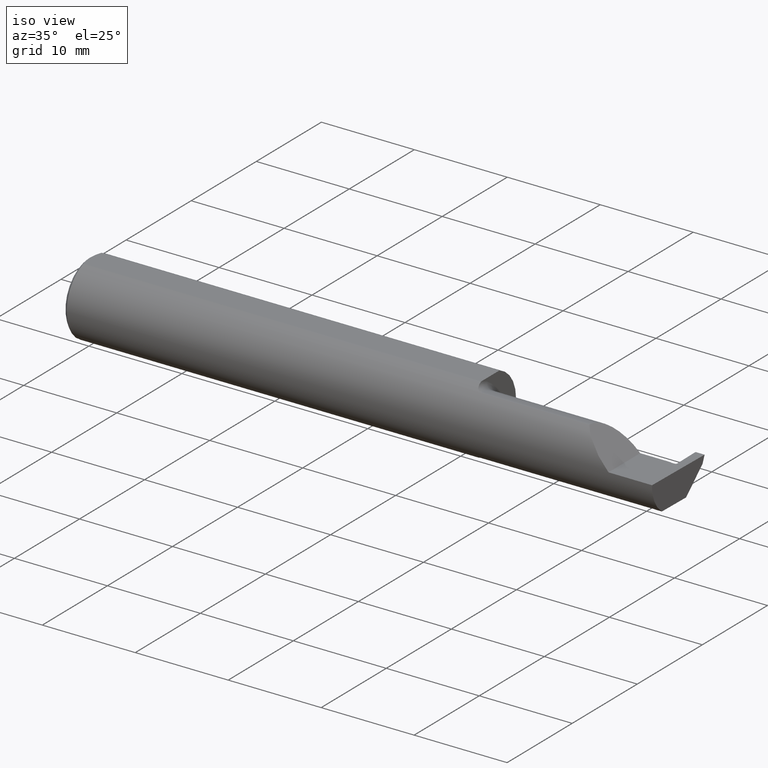
[diagram: clean part render]
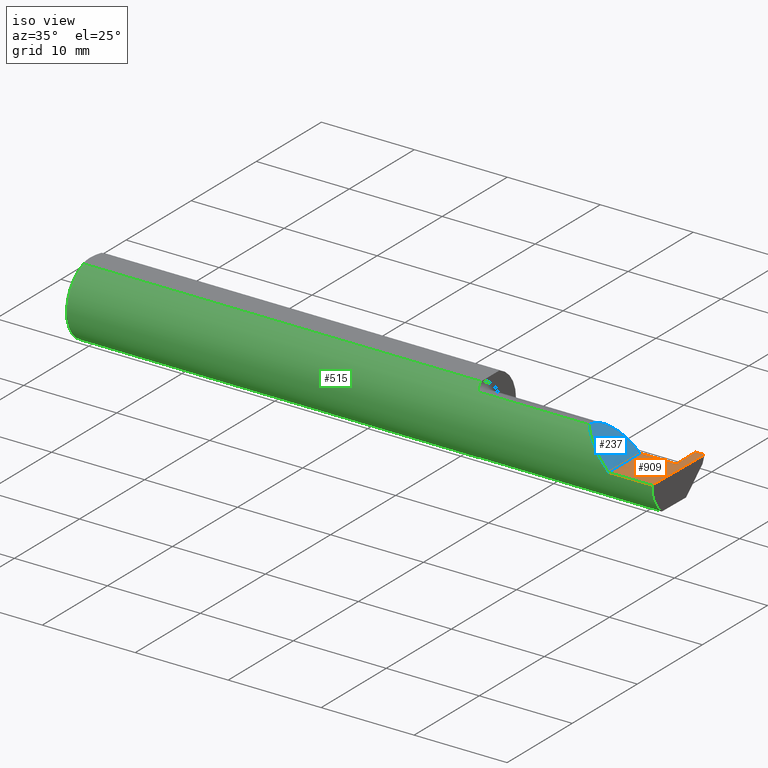
[diagram: same view with three faces highlighted in distinct colors, each labeled with its STEP entity id]
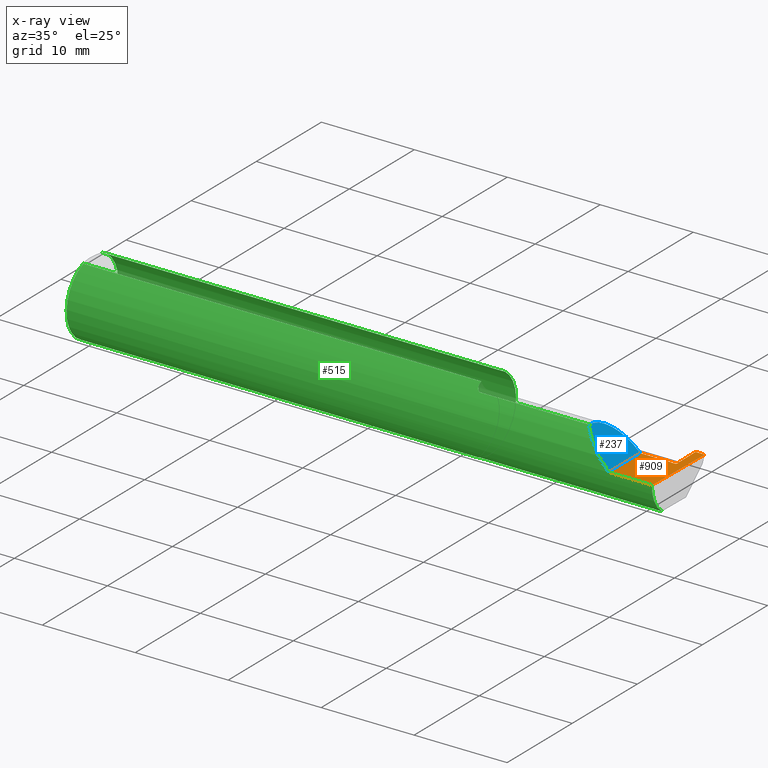
[diagram: x-ray of the same camera — body ghosted, the three highlighted faces saturated]
A machine part, iso view with three faces highlighted in distinct colors.
The next image is the same camera in x-ray (body ghosted, the three faces saturated) — at least one of them is partly hidden behind the body in this view.
Their STEP definitions:

[orange] entity #909 — the highlighted planar face has unit normal (-0, 0, -1).
#22 = CARTESIAN_POINT ( 'NONE',  ( 2.439500000000000668, 0.03590000000000006380, 7.121324356843854204E-18 ) ) ;
#36 = CARTESIAN_POINT ( 'NONE',  ( 2.463470289915465905, 0.04102216684465942453, -1.258616854567686712E-10 ) ) ;
#38 = LINE ( 'NONE', #343, #424 ) ;
#62 = CARTESIAN_POINT ( 'NONE',  ( 2.310000000000000053, 0.03589999999999998748, 2.326828918379970872E-17 ) ) ;
#98 = B_SPLINE_CURVE_WITH_KNOTS ( 'NONE', 1,
 ( #1085, #540 ),
 .UNSPECIFIED., .F., .F.,
 ( 2, 2 ),
 ( 0.000000000000000000, 7.184204902300483377E-05 ),
 .UNSPECIFIED. ) ;
#111 = DIRECTION ( 'NONE',  ( 1.000000000000000000, 0.000000000000000000, 0.000000000000000000 ) ) ;
#116 = EDGE_CURVE ( 'NONE', #488, #147, #628, .T. ) ;
#126 = DIRECTION ( 'NONE',  ( -1.000000000000000000, 0.000000000000000000, 1.224646799147353700E-16 ) ) ;
#145 = CARTESIAN_POINT ( 'NONE',  ( 3.749399456654646757E-32, -0.1560999999999999888, 3.061616997868384127E-16 ) ) ;
#147 = VERTEX_POINT ( 'NONE', #745 ) ;
#197 = CARTESIAN_POINT ( 'NONE',  ( 2.500000000000000000, 0.1539000000000000090, 0.000000000000000000 ) ) ;
#234 = VERTEX_POINT ( 'NONE', #22 ) ;
#243 = CARTESIAN_POINT ( 'NONE',  ( 2.500000000000000000, 0.1539000000000000090, 0.000000000000000000 ) ) ;
#257 = VERTEX_POINT ( 'NONE', #413 ) ;
#261 = CARTESIAN_POINT ( 'NONE',  ( 2.460628833460035914, 0.03389999999987892976, -1.207202258587004251E-10 ) ) ;
#270 = EDGE_CURVE ( 'NONE', #951, #234, #98, .T. ) ;
#273 = EDGE_CURVE ( 'NONE', #1084, #997, #38, .T. ) ;
#300 = B_SPLINE_CURVE_WITH_KNOTS ( 'NONE', 1,
 ( #852, #441 ),
 .UNSPECIFIED., .F., .F.,
 ( 2, 2 ),
 ( 0.000000000000000000, 0.0003802724434284823762 ),
 .UNSPECIFIED. ) ;
#303 = LINE ( 'NONE', #815, #1077 ) ;
#319 = EDGE_CURVE ( 'NONE', #147, #951, #300, .T. ) ;
#336 = VECTOR ( 'NONE', #111, 39.37007874015748143 ) ;
#343 = CARTESIAN_POINT ( 'NONE',  ( 2.310000000000000053, -0.2000000000000000111, 2.326828918379970872E-17 ) ) ;
#361 = VERTEX_POINT ( 'NONE', #197 ) ;
#373 = ORIENTED_EDGE ( 'NONE', *, *, #941, .F. ) ;
#392 = DIRECTION ( 'NONE',  ( 1.000000000000000000, -0.000000000000000000, -0.000000000000000000 ) ) ;
#398 = LINE ( 'NONE', #145, #581 ) ;
#401 = EDGE_CURVE ( 'NONE', #257, #488, #867, .T. ) ;
#413 = CARTESIAN_POINT ( 'NONE',  ( 2.461499999986525022, 0.1539000000000000090, -2.694222958124035986E-19 ) ) ;
#421 = CARTESIAN_POINT ( 'NONE',  ( 2.463542847896578625, 0.03686532263356468581, -1.231239365514285891E-10 ) ) ;
#424 = VECTOR ( 'NONE', #769, 39.37007874015748143 ) ;
#427 = CARTESIAN_POINT ( 'NONE',  ( 2.463470289915465905, 0.04102216684465942453, -1.258616854567686712E-10 ) ) ;
#440 = ORIENTED_EDGE ( 'NONE', *, *, #116, .T. ) ;
#441 = CARTESIAN_POINT ( 'NONE',  ( 2.441500000003368420, 0.03390000000033598776, -4.822709006013936333E-11 ) ) ;
#458 = AXIS2_PLACEMENT_3D ( 'NONE', #695, #1039, #126 ) ;
#460 = CARTESIAN_POINT ( 'NONE',  ( 2.463470289915465905, 0.04102216684465942453, -1.258616854567686712E-10 ) ) ;
#471 = ORIENTED_EDGE ( 'NONE', *, *, #401, .T. ) ;
#488 = VERTEX_POINT ( 'NONE', #460 ) ;
#494 = VERTEX_POINT ( 'NONE', #779 ) ;
#540 = CARTESIAN_POINT ( 'NONE',  ( 2.439500000000000668, 0.03590000000000006380, 7.121324356843854204E-18 ) ) ;
#542 = CARTESIAN_POINT ( 'NONE',  ( 2.461499999986525022, 0.1539000000000000090, -2.694222958124035986E-19 ) ) ;
#544 = PLANE ( 'NONE',  #458 ) ;
#571 = LINE ( 'NONE', #243, #1027 ) ;
#581 = VECTOR ( 'NONE', #721, 39.37007874015748143 ) ;
#610 = FACE_OUTER_BOUND ( 'NONE', #813, .T. ) ;
#614 = CARTESIAN_POINT ( 'NONE',  ( 1.699999999999999956, 0.03590000000000001523, 9.797174393178832313E-17 ) ) ;
#628 =( BOUNDED_CURVE ( )  B_SPLINE_CURVE ( 3, ( #427, #421, #261, #1079 ),
 .UNSPECIFIED., .F., .F. ) 
 B_SPLINE_CURVE_WITH_KNOTS ( ( 4, 4 ),
 ( 8.673617379884047028E-19, 0.0002808519285676875157 ),
 .UNSPECIFIED. ) 
 CURVE ( )  GEOMETRIC_REPRESENTATION_ITEM ( )  RATIONAL_B_SPLINE_CURVE ( ( 1.000000000000000000, 0.8006061761999021531, 0.8006061761999021531, 1.000000000000000000 ) ) 
 REPRESENTATION_ITEM ( '' )  );
#695 = CARTESIAN_POINT ( 'NONE',  ( 2.500000000000000000, -0.2000000000000000111, 0.000000000000000000 ) ) ;
#715 = LINE ( 'NONE', #614, #336 ) ;
#721 = DIRECTION ( 'NONE',  ( -1.000000000000000000, -0.000000000000000000, -0.000000000000000000 ) ) ;
#731 = DIRECTION ( 'NONE',  ( -0.01745240643727716603, -0.9998476951563912696, 0.000000000000000000 ) ) ;
#745 = CARTESIAN_POINT ( 'NONE',  ( 2.456471356043859799, 0.03389999999999732117, -4.694856722559639658E-11 ) ) ;
#758 = ORIENTED_EDGE ( 'NONE', *, *, #319, .T. ) ;
#769 = DIRECTION ( 'NONE',  ( -0.000000000000000000, 1.000000000000000000, -0.000000000000000000 ) ) ;
#779 = CARTESIAN_POINT ( 'NONE',  ( 2.494588929872255001, -0.1561000000000000443, 0.000000000000000000 ) ) ;
#813 = EDGE_LOOP ( 'NONE', ( #919, #924, #1013, #471, #440, #758, #980, #373, #858 ) ) ;
#815 = CARTESIAN_POINT ( 'NONE',  ( 2.399999999999999911, 0.1539000000000000090, -2.694222958124035986E-19 ) ) ;
#852 = CARTESIAN_POINT ( 'NONE',  ( 2.456471356043859799, 0.03389999999999732117, -4.694856722559639658E-11 ) ) ;
#858 = ORIENTED_EDGE ( 'NONE', *, *, #273, .F. ) ;
#867 = B_SPLINE_CURVE_WITH_KNOTS ( 'NONE', 1,
 ( #542, #36 ),
 .UNSPECIFIED., .F., .F.,
 ( 2, 2 ),
 ( 6.843756573219531102E-15, 0.002867533701434297599 ),
 .UNSPECIFIED. ) ;
#909 = ADVANCED_FACE ( 'NONE', ( #610 ), #544, .F. ) ;
#919 = ORIENTED_EDGE ( 'NONE', *, *, #1070, .F. ) ;
#924 = ORIENTED_EDGE ( 'NONE', *, *, #1087, .F. ) ;
#941 = EDGE_CURVE ( 'NONE', #997, #234, #715, .T. ) ;
#951 = VERTEX_POINT ( 'NONE', #972 ) ;
#972 = CARTESIAN_POINT ( 'NONE',  ( 2.441500000003368420, 0.03390000000033598776, -4.822709006013936333E-11 ) ) ;
#980 = ORIENTED_EDGE ( 'NONE', *, *, #270, .T. ) ;
#982 = CARTESIAN_POINT ( 'NONE',  ( 2.310000000000000053, -0.1560999999999999888, 2.326828918379970872E-17 ) ) ;
#997 = VERTEX_POINT ( 'NONE', #62 ) ;
#1013 = ORIENTED_EDGE ( 'NONE', *, *, #1017, .F. ) ;
#1017 = EDGE_CURVE ( 'NONE', #257, #361, #303, .T. ) ;
#1027 = VECTOR ( 'NONE', #731, 39.37007874015748143 ) ;
#1039 = DIRECTION ( 'NONE',  ( -1.224646799147353700E-16, 0.000000000000000000, -1.000000000000000000 ) ) ;
#1070 = EDGE_CURVE ( 'NONE', #494, #1084, #398, .T. ) ;
#1077 = VECTOR ( 'NONE', #392, 39.37007874015748143 ) ;
#1079 = CARTESIAN_POINT ( 'NONE',  ( 2.456471356043859799, 0.03389999999999732117, -4.694856722559639658E-11 ) ) ;
#1084 = VERTEX_POINT ( 'NONE', #982 ) ;
#1085 = CARTESIAN_POINT ( 'NONE',  ( 2.441500000003368420, 0.03390000000033598776, -4.822709006013936333E-11 ) ) ;
#1087 = EDGE_CURVE ( 'NONE', #361, #494, #571, .T. ) ;

[blue] entity #237 — the highlighted planar face has unit normal (-0.7071, 0, -0.7071).
#25 = CARTESIAN_POINT ( 'NONE',  ( 2.185000000000000941, -0.08909999999999998477, 0.1250000000000000000 ) ) ;
#38 = LINE ( 'NONE', #343, #424 ) ;
#43 = CARTESIAN_POINT ( 'NONE',  ( 2.185000000000000941, -0.09060321336276840054, 0.1250000000000000278 ) ) ;
#62 = CARTESIAN_POINT ( 'NONE',  ( 2.310000000000000053, 0.03589999999999998748, 2.326828918379970872E-17 ) ) ;
#92 = CARTESIAN_POINT ( 'NONE',  ( 2.185081329771848768, -0.09360841750841755737, 0.1249186702281519651 ) ) ;
#104 = ORIENTED_EDGE ( 'NONE', *, *, #934, .F. ) ;
#109 = VERTEX_POINT ( 'NONE', #1018 ) ;
#193 = AXIS2_PLACEMENT_3D ( 'NONE', #722, #1061, #560 ) ;
#202 = VERTEX_POINT ( 'NONE', #92 ) ;
#205 = CARTESIAN_POINT ( 'NONE',  ( 2.185000000000000941, -0.08909999999999998477, 0.1250000000000000000 ) ) ;
#219 = FACE_OUTER_BOUND ( 'NONE', #658, .T. ) ;
#237 = ADVANCED_FACE ( 'NONE', ( #219 ), #552, .F. ) ;
#256 =( BOUNDED_CURVE ( )  B_SPLINE_CURVE ( 3, ( #205, #962, #633, #885 ),
 .UNSPECIFIED., .F., .F. ) 
 B_SPLINE_CURVE_WITH_KNOTS ( ( 4, 4 ),
 ( 0.000000000000000000, 1.570796326794896558 ),
 .UNSPECIFIED. ) 
 CURVE ( )  GEOMETRIC_REPRESENTATION_ITEM ( )  RATIONAL_B_SPLINE_CURVE ( ( 1.000000000000000000, 0.8047378541243649375, 0.8047378541243649375, 1.000000000000000000 ) ) 
 REPRESENTATION_ITEM ( '' )  );
#273 = EDGE_CURVE ( 'NONE', #1084, #997, #38, .T. ) ;
#343 = CARTESIAN_POINT ( 'NONE',  ( 2.310000000000000053, -0.2000000000000000111, 2.326828918379970872E-17 ) ) ;
#350 = EDGE_CURVE ( 'NONE', #1084, #202, #930, .T. ) ;
#424 = VECTOR ( 'NONE', #769, 39.37007874015748143 ) ;
#533 = CARTESIAN_POINT ( 'NONE',  ( 2.310000000000000053, -0.1560999999999999888, 2.326828918379970872E-17 ) ) ;
#552 = PLANE ( 'NONE',  #193 ) ;
#560 = DIRECTION ( 'NONE',  ( -0.7071067811865459074, 0.000000000000000000, 0.7071067811865492381 ) ) ;
#630 = ORIENTED_EDGE ( 'NONE', *, *, #350, .F. ) ;
#632 = CARTESIAN_POINT ( 'NONE',  ( 2.259912409421232837, -0.1560999999999999888, 0.05008759057876772947 ) ) ;
#633 = CARTESIAN_POINT ( 'NONE',  ( 2.236776695296637474, 0.03590000000000000829, 0.07322330470336313457 ) ) ;
#658 = EDGE_LOOP ( 'NONE', ( #104, #630, #733, #840 ) ) ;
#669 =( BOUNDED_CURVE ( )  B_SPLINE_CURVE ( 3, ( #866, #797, #43, #25 ),
 .UNSPECIFIED., .F., .T. ) 
 B_SPLINE_CURVE_WITH_KNOTS ( ( 4, 4 ),
 ( 6.247110142813122380, 6.283185307179586232 ),
 .UNSPECIFIED. ) 
 CURVE ( )  GEOMETRIC_REPRESENTATION_ITEM ( )  RATIONAL_B_SPLINE_CURVE ( ( 1.000000000000000000, 0.9998915514833921492, 0.9998915514833921492, 1.000000000000000000 ) ) 
 REPRESENTATION_ITEM ( '' )  );
#722 = CARTESIAN_POINT ( 'NONE',  ( 2.310000000000000053, -0.2000000000000000111, 2.326828918379970872E-17 ) ) ;
#733 = ORIENTED_EDGE ( 'NONE', *, *, #273, .T. ) ;
#769 = DIRECTION ( 'NONE',  ( -0.000000000000000000, 1.000000000000000000, -0.000000000000000000 ) ) ;
#797 = CARTESIAN_POINT ( 'NONE',  ( 2.185027112864299959, -0.09210618219364782866, 0.1249728871357007748 ) ) ;
#840 = ORIENTED_EDGE ( 'NONE', *, *, #859, .F. ) ;
#859 = EDGE_CURVE ( 'NONE', #109, #997, #256, .T. ) ;
#864 = CARTESIAN_POINT ( 'NONE',  ( 2.185081329771848768, -0.09360841750841755737, 0.1249186702281519651 ) ) ;
#866 = CARTESIAN_POINT ( 'NONE',  ( 2.185081329771848768, -0.09360841750841755737, 0.1249186702281519651 ) ) ;
#885 = CARTESIAN_POINT ( 'NONE',  ( 2.310000000000000053, 0.03589999999999998748, 2.326828918379970872E-17 ) ) ;
#930 =( BOUNDED_CURVE ( )  B_SPLINE_CURVE ( 3, ( #533, #632, #1044, #864 ),
 .UNSPECIFIED., .F., .T. ) 
 B_SPLINE_CURVE_WITH_KNOTS ( ( 4, 4 ),
 ( 4.712388980384689674, 5.640097190903853530 ),
 .UNSPECIFIED. ) 
 CURVE ( )  GEOMETRIC_REPRESENTATION_ITEM ( )  RATIONAL_B_SPLINE_CURVE ( ( 1.000000000000000000, 0.9295565493311498395, 0.9295565493311498395, 1.000000000000000000 ) ) 
 REPRESENTATION_ITEM ( '' )  );
#934 = EDGE_CURVE ( 'NONE', #202, #109, #669, .T. ) ;
#962 = CARTESIAN_POINT ( 'NONE',  ( 2.185000000000000941, -0.01587669529663685714, 0.1250000000000000278 ) ) ;
#982 = CARTESIAN_POINT ( 'NONE',  ( 2.310000000000000053, -0.1560999999999999888, 2.326828918379970872E-17 ) ) ;
#997 = VERTEX_POINT ( 'NONE', #62 ) ;
#1018 = CARTESIAN_POINT ( 'NONE',  ( 2.185000000000000941, -0.08909999999999998477, 0.1250000000000000000 ) ) ;
#1044 = CARTESIAN_POINT ( 'NONE',  ( 2.215117332916550552, -0.1336908980339254205, 0.09488266708345004241 ) ) ;
#1061 = DIRECTION ( 'NONE',  ( -0.7071067811865492381, 0.000000000000000000, -0.7071067811865459074 ) ) ;
#1084 = VERTEX_POINT ( 'NONE', #982 ) ;

[green] entity #515 — the highlighted cylindrical surface (partial cylindrical patch) has radius 3.9649 mm, axis along (-1, -0, -0).
#7 = CARTESIAN_POINT ( 'NONE',  ( 1.712810002172222346, -0.08909999999984934138, 0.1281733201569306146 ) ) ;
#8 = VERTEX_POINT ( 'NONE', #836 ) ;
#9 = EDGE_CURVE ( 'NONE', #378, #8, #408, .T. ) ;
#17 =( BOUNDED_CURVE ( )  B_SPLINE_CURVE ( 3, ( #531, #887, #45, #294 ),
 .UNSPECIFIED., .F., .T. ) 
 B_SPLINE_CURVE_WITH_KNOTS ( ( 4, 4 ),
 ( 0.05521439950980804034, 0.9829226100289724100 ),
 .UNSPECIFIED. ) 
 CURVE ( )  GEOMETRIC_REPRESENTATION_ITEM ( )  RATIONAL_B_SPLINE_CURVE ( ( 1.000000000000000000, 0.9295565493311498395, 0.9295565493311498395, 1.000000000000000000 ) ) 
 REPRESENTATION_ITEM ( '' )  );
#18 = AXIS2_PLACEMENT_3D ( 'NONE', #224, #60, #472 ) ;
#21 = CARTESIAN_POINT ( 'NONE',  ( 1.699999999999999956, 0.000000000000000000, 0.000000000000000000 ) ) ;
#24 = DIRECTION ( 'NONE',  ( 0.000000000000000000, 0.000000000000000000, -1.000000000000000000 ) ) ;
#28 = ORIENTED_EDGE ( 'NONE', *, *, #589, .F. ) ;
#31 = CARTESIAN_POINT ( 'NONE',  ( 0.01499999999999999944, -0.05497272050753900657, 0.1460999999999999799 ) ) ;
#32 = DIRECTION ( 'NONE',  ( -1.000000000000000000, -0.000000000000000000, -0.000000000000000000 ) ) ;
#45 = CARTESIAN_POINT ( 'NONE',  ( 2.493277140361873201, -0.1561000000000000165, -0.05008759057876776416 ) ) ;
#46 = ORIENTED_EDGE ( 'NONE', *, *, #873, .F. ) ;
#54 = VECTOR ( 'NONE', #355, 39.37007874015748143 ) ;
#60 = DIRECTION ( 'NONE',  ( -1.000000000000000000, -0.000000000000000000, -0.000000000000000000 ) ) ;
#70 = CARTESIAN_POINT ( 'NONE',  ( 2.447675737396382001, -0.09578188742118470822, -0.1232601041107730250 ) ) ;
#73 = VERTEX_POINT ( 'NONE', #1089 ) ;
#78 = CARTESIAN_POINT ( 'NONE',  ( 1.716072683443917946, -0.09172126259464279119, 0.1263511429915041839 ) ) ;
#87 = CARTESIAN_POINT ( 'NONE',  ( 1.720364775055372553, -0.09360841750841757125, 0.1249186702281519512 ) ) ;
#92 = CARTESIAN_POINT ( 'NONE',  ( 2.185081329771848768, -0.09360841750841755737, 0.1249186702281519651 ) ) ;
#95 = CARTESIAN_POINT ( 'NONE',  ( 2.492408115719126460, -0.09360841750841747411, -0.1249186702281520206 ) ) ;
#97 = ORIENTED_EDGE ( 'NONE', *, *, #1019, .F. ) ;
#106 = DIRECTION ( 'NONE',  ( 0.000000000000000000, 0.000000000000000000, -1.000000000000000000 ) ) ;
#112 = CARTESIAN_POINT ( 'NONE',  ( 2.090749999999999886, -0.09360841750841747411, -0.1249186702281520206 ) ) ;
#117 = EDGE_CURVE ( 'NONE', #647, #378, #352, .T. ) ;
#120 = EDGE_CURVE ( 'NONE', #331, #311, #998, .T. ) ;
#129 = CARTESIAN_POINT ( 'NONE',  ( 0.000000000000000000, 0.05497272050753900657, 0.1460999999999999799 ) ) ;
#134 = CARTESIAN_POINT ( 'NONE',  ( 2.457020500426053911, -0.09623428318624049904, -0.1229071712294707436 ) ) ;
#145 = CARTESIAN_POINT ( 'NONE',  ( 3.749399456654646757E-32, -0.1560999999999999888, 3.061616997868384127E-16 ) ) ;
#150 = CARTESIAN_POINT ( 'NONE',  ( 2.459512452820178385, -0.09635452000985572640, -0.1228129565512181276 ) ) ;
#152 = CARTESIAN_POINT ( 'NONE',  ( 1.705056522840238120, -0.07943464720522702693, 0.1344128205797975040 ) ) ;
#158 = CARTESIAN_POINT ( 'NONE',  ( 1.708314215045238837, -0.08466760255782122824, 0.1311795204669789217 ) ) ;
#159 = VERTEX_POINT ( 'NONE', #31 ) ;
#164 = ORIENTED_EDGE ( 'NONE', *, *, #117, .F. ) ;
#167 = EDGE_CURVE ( 'NONE', #800, #331, #370, .T. ) ;
#178 = VERTEX_POINT ( 'NONE', #530 ) ;
#184 = VERTEX_POINT ( 'NONE', #1024 ) ;
#191 = DIRECTION ( 'NONE',  ( 1.000000000000000000, 0.000000000000000000, 0.000000000000000000 ) ) ;
#202 = VERTEX_POINT ( 'NONE', #92 ) ;
#203 = DIRECTION ( 'NONE',  ( 1.000000000000000000, 0.000000000000000000, 0.000000000000000000 ) ) ;
#211 = DIRECTION ( 'NONE',  ( 1.000000000000000000, 0.000000000000000000, 0.000000000000000000 ) ) ;
#224 = CARTESIAN_POINT ( 'NONE',  ( 0.000000000000000000, 0.000000000000000000, 0.000000000000000000 ) ) ;
#228 = VERTEX_POINT ( 'NONE', #780 ) ;
#232 = CARTESIAN_POINT ( 'NONE',  ( 2.453282581884050462, -0.09605366783568212996, -0.1230484297883021605 ) ) ;
#238 = CARTESIAN_POINT ( 'NONE',  ( 2.445345111343429245, -0.09500096213625153219, -0.1238660165995770224 ) ) ;
#240 = CARTESIAN_POINT ( 'NONE',  ( 2.462958620952170552, -0.09612681111944289258, -0.1229930763061728438 ) ) ;
#251 = ORIENTED_EDGE ( 'NONE', *, *, #870, .F. ) ;
#255 = CARTESIAN_POINT ( 'NONE',  ( 1.710319203512566277, -0.08709887368156789267, 0.1295644080582773749 ) ) ;
#276 = LINE ( 'NONE', #874, #954 ) ;
#294 = CARTESIAN_POINT ( 'NONE',  ( 2.494588929872255001, -0.1561000000000000443, 0.000000000000000000 ) ) ;
#305 = DIRECTION ( 'NONE',  ( -1.000000000000000000, -0.000000000000000000, -0.000000000000000000 ) ) ;
#306 = ORIENTED_EDGE ( 'NONE', *, *, #984, .F. ) ;
#307 = CARTESIAN_POINT ( 'NONE',  ( 2.444421270371395227, -0.09360841750841732145, -0.1249186702281520206 ) ) ;
#308 = CARTESIAN_POINT ( 'NONE',  ( 1.708312875394041308, -0.08466547365232440781, -0.1311808389156051691 ) ) ;
#311 = VERTEX_POINT ( 'NONE', #418 ) ;
#321 = CARTESIAN_POINT ( 'NONE',  ( 1.699999999999999289, -0.06156212810510084538, 0.1436177747480845979 ) ) ;
#324 = VERTEX_POINT ( 'NONE', #925 ) ;
#331 = VERTEX_POINT ( 'NONE', #1033 ) ;
#350 = EDGE_CURVE ( 'NONE', #1084, #202, #930, .T. ) ;
#351 = AXIS2_PLACEMENT_3D ( 'NONE', #877, #203, #24 ) ;
#352 = B_SPLINE_CURVE_WITH_KNOTS ( 'NONE', 3,
 ( #918, #321, #763, #412, #152, #158, #255, #672 ),
 .UNSPECIFIED., .F., .F.,
 ( 4, 2, 2, 4 ),
 ( 2.042507625483139074E-06, 0.0005263182385139235754, 0.0007884561039581438387, 0.001050593969402363994 ),
 .UNSPECIFIED. ) ;
#355 = DIRECTION ( 'NONE',  ( -1.000000000000000000, -0.000000000000000000, -0.000000000000000000 ) ) ;
#357 = ORIENTED_EDGE ( 'NONE', *, *, #1070, .T. ) ;
#362 = CARTESIAN_POINT ( 'NONE',  ( 1.699999999999999734, -0.05502817059483720158, -0.1460791239054557156 ) ) ;
#366 = ORIENTED_EDGE ( 'NONE', *, *, #508, .F. ) ;
#370 = LINE ( 'NONE', #112, #54 ) ;
#378 = VERTEX_POINT ( 'NONE', #802 ) ;
#386 = CARTESIAN_POINT ( 'NONE',  ( 1.703804698179400390, -0.07664326672408303120, -0.1360300949145557547 ) ) ;
#398 = LINE ( 'NONE', #145, #581 ) ;
#405 = CARTESIAN_POINT ( 'NONE',  ( 2.465372530024502407, -0.09436784564007082154, -0.1243495890372814661 ) ) ;
#408 = B_SPLINE_CURVE_WITH_KNOTS ( 'NONE', 3,
 ( #7, #78, #87, #928 ),
 .UNSPECIFIED., .F., .F.,
 ( 4, 4 ),
 ( 0.001050593969402363994, 0.001393966686689414704 ),
 .UNSPECIFIED. ) ;
#410 = CARTESIAN_POINT ( 'NONE',  ( 2.090749999999999886, -0.09360841750841747411, 0.1249186702281520206 ) ) ;
#412 = CARTESIAN_POINT ( 'NONE',  ( 1.703785422859118937, -0.07659497035394365050, 0.1360571150960169506 ) ) ;
#418 = CARTESIAN_POINT ( 'NONE',  ( 2.460758433086303043, -0.09641453430756345699, -0.1227658241297457653 ) ) ;
#422 = ORIENTED_EDGE ( 'NONE', *, *, #9, .F. ) ;
#443 = CARTESIAN_POINT ( 'NONE',  ( 1.712810002172886259, -0.08909999999996048858, -0.1281733201567834268 ) ) ;
#450 = ORIENTED_EDGE ( 'NONE', *, *, #622, .T. ) ;
#466 = CYLINDRICAL_SURFACE ( 'NONE', #18, 0.1560999999999999888 ) ;
#467 = EDGE_CURVE ( 'NONE', #324, #178, #966, .T. ) ;
#472 = DIRECTION ( 'NONE',  ( 0.000000000000000000, 0.000000000000000000, 1.000000000000000000 ) ) ;
#473 = CARTESIAN_POINT ( 'NONE',  ( 1.710315048287043949, -0.08709553534231935512, -0.1295667287130568279 ) ) ;
#475 = CARTESIAN_POINT ( 'NONE',  ( 0.01499999999999999944, 0.000000000000000000, 0.000000000000000000 ) ) ;
#482 = LINE ( 'NONE', #914, #757 ) ;
#483 = VERTEX_POINT ( 'NONE', #362 ) ;
#485 = CARTESIAN_POINT ( 'NONE',  ( 2.444421270371395227, -0.09360841750841732145, -0.1249186702281520206 ) ) ;
#486 = B_SPLINE_CURVE_WITH_KNOTS ( 'NONE', 3,
 ( #726, #150, #490, #134, #803, #232, #827, #1075, #70, #640 ),
 .UNSPECIFIED., .F., .F.,
 ( 4, 3, 3, 4 ),
 ( 0.000000000000000000, 9.512159278853818574E-05, 0.0002378039862949639675, 0.0003804863840084716435 ),
 .UNSPECIFIED. ) ;
#490 = CARTESIAN_POINT ( 'NONE',  ( 2.458266475267615991, -0.09629443627925335369, -0.1228600723520853061 ) ) ;
#492 = CARTESIAN_POINT ( 'NONE',  ( 2.460758433086303043, -0.09641453430756345699, -0.1227658241297457653 ) ) ;
#494 = VERTEX_POINT ( 'NONE', #779 ) ;
#498 = B_SPLINE_CURVE_WITH_KNOTS ( 'NONE', 3,
 ( #551, #785, #690, #709 ),
 .UNSPECIFIED., .F., .F.,
 ( 4, 4 ),
 ( 1.958690481382186847E-07, 0.0003463854958010656741 ),
 .UNSPECIFIED. ) ;
#508 = EDGE_CURVE ( 'NONE', #483, #324, #700, .T. ) ;
#515 = ADVANCED_FACE ( 'NONE', ( #550 ), #466, .T. ) ;
#530 = CARTESIAN_POINT ( 'NONE',  ( 0.01499999999999999771, 0.05497272050753900657, 0.1460999999999999799 ) ) ;
#531 = CARTESIAN_POINT ( 'NONE',  ( 2.492408115719126460, -0.09360841750841747411, -0.1249186702281520206 ) ) ;
#533 = CARTESIAN_POINT ( 'NONE',  ( 2.310000000000000053, -0.1560999999999999888, 2.326828918379970872E-17 ) ) ;
#550 = FACE_OUTER_BOUND ( 'NONE', #637, .T. ) ;
#551 = CARTESIAN_POINT ( 'NONE',  ( 1.724999999999999867, -0.09360841750841744635, -0.1249186702281520206 ) ) ;
#553 = VERTEX_POINT ( 'NONE', #307 ) ;
#555 = CARTESIAN_POINT ( 'NONE',  ( 1.699999999999999067, -0.06152246774674052093, -0.1436327148497735240 ) ) ;
#566 = CARTESIAN_POINT ( 'NONE',  ( 1.699999999999999734, -0.05502817059483720158, -0.1460791239054557156 ) ) ;
#581 = VECTOR ( 'NONE', #721, 39.37007874015748143 ) ;
#589 = EDGE_CURVE ( 'NONE', #184, #159, #773, .T. ) ;
#599 = VECTOR ( 'NONE', #889, 39.37007874015748143 ) ;
#601 = CIRCLE ( 'NONE', #902, 0.1560999999999999888 ) ;
#622 = EDGE_CURVE ( 'NONE', #800, #494, #17, .T. ) ;
#632 = CARTESIAN_POINT ( 'NONE',  ( 2.259912409421232837, -0.1560999999999999888, 0.05008759057876772947 ) ) ;
#637 = EDGE_LOOP ( 'NONE', ( #651, #450, #357, #904, #831, #422, #164, #46, #251, #28, #789, #764, #366, #795, #892, #1053, #306, #97, #713 ) ) ;
#640 = CARTESIAN_POINT ( 'NONE',  ( 2.445806799314936164, -0.09569103450145266532, -0.1233305960256488032 ) ) ;
#647 = VERTEX_POINT ( 'NONE', #717 ) ;
#651 = ORIENTED_EDGE ( 'NONE', *, *, #167, .F. ) ;
#655 = CARTESIAN_POINT ( 'NONE',  ( 1.700847904676645372, -0.06780574120017832107, -0.1407631332654325773 ) ) ;
#667 = VECTOR ( 'NONE', #1066, 39.37007874015748143 ) ;
#672 = CARTESIAN_POINT ( 'NONE',  ( 1.712810002172222346, -0.08909999999984934138, 0.1281733201569306146 ) ) ;
#690 = CARTESIAN_POINT ( 'NONE',  ( 1.716077244708472893, -0.09172492714866099794, -0.1263485955677197681 ) ) ;
#700 = CIRCLE ( 'NONE', #351, 0.1560999999999999888 ) ;
#705 = EDGE_CURVE ( 'NONE', #553, #932, #482, .T. ) ;
#709 = CARTESIAN_POINT ( 'NONE',  ( 1.712810002172886259, -0.08909999999996048858, -0.1281733201567834268 ) ) ;
#713 = ORIENTED_EDGE ( 'NONE', *, *, #120, .F. ) ;
#717 = CARTESIAN_POINT ( 'NONE',  ( 1.699999999999999734, -0.05502817059483720158, 0.1460791239054557156 ) ) ;
#721 = DIRECTION ( 'NONE',  ( -1.000000000000000000, -0.000000000000000000, -0.000000000000000000 ) ) ;
#726 = CARTESIAN_POINT ( 'NONE',  ( 2.460758433086303043, -0.09641453430756345699, -0.1227658241297457653 ) ) ;
#740 = CIRCLE ( 'NONE', #991, 0.1560999999999999888 ) ;
#756 = EDGE_CURVE ( 'NONE', #178, #184, #740, .T. ) ;
#757 = VECTOR ( 'NONE', #992, 39.37007874015748143 ) ;
#763 = CARTESIAN_POINT ( 'NONE',  ( 1.700844056398637116, -0.06777540567362902446, 0.1407770456887921517 ) ) ;
#764 = ORIENTED_EDGE ( 'NONE', *, *, #467, .F. ) ;
#773 = CIRCLE ( 'NONE', #1060, 0.1560999999999999888 ) ;
#776 = CARTESIAN_POINT ( 'NONE',  ( 2.445806799314936164, -0.09569103450145266532, -0.1233305960256488032 ) ) ;
#779 = CARTESIAN_POINT ( 'NONE',  ( 2.494588929872255001, -0.1561000000000000443, 0.000000000000000000 ) ) ;
#780 = CARTESIAN_POINT ( 'NONE',  ( 2.445806799314936164, -0.09569103450145266532, -0.1233305960256488032 ) ) ;
#785 = CARTESIAN_POINT ( 'NONE',  ( 1.720361275910303522, -0.09360841750841759901, -0.1249186702281519512 ) ) ;
#787 = CARTESIAN_POINT ( 'NONE',  ( 0.01499999999999999944, 0.000000000000000000, 0.000000000000000000 ) ) ;
#789 = ORIENTED_EDGE ( 'NONE', *, *, #756, .F. ) ;
#795 = ORIENTED_EDGE ( 'NONE', *, *, #988, .F. ) ;
#800 = VERTEX_POINT ( 'NONE', #95 ) ;
#802 = CARTESIAN_POINT ( 'NONE',  ( 1.712810002172222346, -0.08909999999984934138, 0.1281733201569306146 ) ) ;
#803 = CARTESIAN_POINT ( 'NONE',  ( 2.455151538110904585, -0.09614405354417178418, -0.1229778195475450392 ) ) ;
#827 = CARTESIAN_POINT ( 'NONE',  ( 2.451413631736417464, -0.09596312630643989705, -0.1231190009279407582 ) ) ;
#831 = ORIENTED_EDGE ( 'NONE', *, *, #1055, .F. ) ;
#836 = CARTESIAN_POINT ( 'NONE',  ( 1.724999999999999867, -0.09360841750841747411, 0.1249186702281520206 ) ) ;
#854 = B_SPLINE_CURVE_WITH_KNOTS ( 'NONE', 3,
 ( #443, #473, #308, #913, #386, #655, #555, #566 ),
 .UNSPECIFIED., .F., .F.,
 ( 4, 2, 2, 4 ),
 ( 0.0003463854958010656741, 0.0006107451645895158390, 0.0008751048333779660581, 0.001403824170954859774 ),
 .UNSPECIFIED. ) ;
#864 = CARTESIAN_POINT ( 'NONE',  ( 2.185081329771848768, -0.09360841750841755737, 0.1249186702281519651 ) ) ;
#869 = DIRECTION ( 'NONE',  ( 0.000000000000000000, 0.000000000000000000, 1.000000000000000000 ) ) ;
#870 = EDGE_CURVE ( 'NONE', #159, #1026, #276, .T. ) ;
#873 = EDGE_CURVE ( 'NONE', #1026, #647, #601, .T. ) ;
#874 = CARTESIAN_POINT ( 'NONE',  ( 0.000000000000000000, -0.05497272050753900657, 0.1460999999999999799 ) ) ;
#877 = CARTESIAN_POINT ( 'NONE',  ( 1.699999999999999956, 0.000000000000000000, 0.000000000000000000 ) ) ;
#887 = CARTESIAN_POINT ( 'NONE',  ( 2.492495113650786021, -0.1336908980339254205, -0.09488266708345007017 ) ) ;
#889 = DIRECTION ( 'NONE',  ( -1.000000000000000000, -0.000000000000000000, -0.000000000000000000 ) ) ;
#892 = ORIENTED_EDGE ( 'NONE', *, *, #905, .F. ) ;
#902 = AXIS2_PLACEMENT_3D ( 'NONE', #21, #211, #106 ) ;
#904 = ORIENTED_EDGE ( 'NONE', *, *, #350, .T. ) ;
#905 = EDGE_CURVE ( 'NONE', #932, #73, #498, .T. ) ;
#913 = CARTESIAN_POINT ( 'NONE',  ( 1.705057722617700611, -0.07943655142502260846, -0.1344116409581928018 ) ) ;
#914 = CARTESIAN_POINT ( 'NONE',  ( 2.090749999999999886, -0.09360841750841747411, -0.1249186702281520206 ) ) ;
#915 = CARTESIAN_POINT ( 'NONE',  ( 2.461870861435892621, -0.09646811579188419028, -0.1227237437389290531 ) ) ;
#918 = CARTESIAN_POINT ( 'NONE',  ( 1.699999999999999734, -0.05502817059483720158, 0.1460791239054557156 ) ) ;
#925 = CARTESIAN_POINT ( 'NONE',  ( 1.699999999999999956, 0.05497272050753900657, 0.1460999999999999799 ) ) ;
#928 = CARTESIAN_POINT ( 'NONE',  ( 1.724999999999999867, -0.09360841750841747411, 0.1249186702281520206 ) ) ;
#930 =( BOUNDED_CURVE ( )  B_SPLINE_CURVE ( 3, ( #533, #632, #1044, #864 ),
 .UNSPECIFIED., .F., .T. ) 
 B_SPLINE_CURVE_WITH_KNOTS ( ( 4, 4 ),
 ( 4.712388980384689674, 5.640097190903853530 ),
 .UNSPECIFIED. ) 
 CURVE ( )  GEOMETRIC_REPRESENTATION_ITEM ( )  RATIONAL_B_SPLINE_CURVE ( ( 1.000000000000000000, 0.9295565493311498395, 0.9295565493311498395, 1.000000000000000000 ) ) 
 REPRESENTATION_ITEM ( '' )  );
#932 = VERTEX_POINT ( 'NONE', #1046 ) ;
#946 = B_SPLINE_CURVE_WITH_KNOTS ( 'NONE', 3,
 ( #776, #238, #977, #485 ),
 .UNSPECIFIED., .F., .F.,
 ( 4, 4 ),
 ( 5.293749646857445613E-18, 7.520689195611335071E-05 ),
 .UNSPECIFIED. ) ;
#954 = VECTOR ( 'NONE', #191, 39.37007874015748143 ) ;
#966 = LINE ( 'NONE', #129, #599 ) ;
#977 = CARTESIAN_POINT ( 'NONE',  ( 2.444883274121979699, -0.09430675028159224427, -0.1243953711434615111 ) ) ;
#982 = CARTESIAN_POINT ( 'NONE',  ( 2.310000000000000053, -0.1560999999999999888, 2.326828918379970872E-17 ) ) ;
#984 = EDGE_CURVE ( 'NONE', #228, #553, #946, .T. ) ;
#988 = EDGE_CURVE ( 'NONE', #73, #483, #854, .T. ) ;
#991 = AXIS2_PLACEMENT_3D ( 'NONE', #475, #305, #1062 ) ;
#992 = DIRECTION ( 'NONE',  ( -1.000000000000000000, -0.000000000000000000, -0.000000000000000000 ) ) ;
#996 = CARTESIAN_POINT ( 'NONE',  ( 2.464692907515819265, -0.09506543444703710599, -0.1238152809981272195 ) ) ;
#998 = B_SPLINE_CURVE_WITH_KNOTS ( 'NONE', 3,
 ( #1012, #405, #996, #240, #915, #492 ),
 .UNSPECIFIED., .F., .F.,
 ( 4, 2, 4 ),
 ( 0.0002236889353495204289, 0.0003060019729275876427, 0.0003883150105056549107 ),
 .UNSPECIFIED. ) ;
#999 = CARTESIAN_POINT ( 'NONE',  ( 1.699999999999999956, -0.05497272050753899270, 0.1460999999999999799 ) ) ;
#1012 = CARTESIAN_POINT ( 'NONE',  ( 2.465920927715513855, -0.09360841750841732145, -0.1249186702281520484 ) ) ;
#1019 = EDGE_CURVE ( 'NONE', #311, #228, #486, .T. ) ;
#1024 = CARTESIAN_POINT ( 'NONE',  ( 0.01499999999999999944, 0.000000000000000000, -0.1560999999999999888 ) ) ;
#1026 = VERTEX_POINT ( 'NONE', #999 ) ;
#1033 = CARTESIAN_POINT ( 'NONE',  ( 2.465920927715513855, -0.09360841750841732145, -0.1249186702281520484 ) ) ;
#1044 = CARTESIAN_POINT ( 'NONE',  ( 2.215117332916550552, -0.1336908980339254205, 0.09488266708345004241 ) ) ;
#1046 = CARTESIAN_POINT ( 'NONE',  ( 1.724999999999999867, -0.09360841750841744635, -0.1249186702281520206 ) ) ;
#1053 = ORIENTED_EDGE ( 'NONE', *, *, #705, .F. ) ;
#1055 = EDGE_CURVE ( 'NONE', #8, #202, #1080, .T. ) ;
#1060 = AXIS2_PLACEMENT_3D ( 'NONE', #787, #32, #869 ) ;
#1062 = DIRECTION ( 'NONE',  ( 0.000000000000000000, 0.000000000000000000, 1.000000000000000000 ) ) ;
#1066 = DIRECTION ( 'NONE',  ( 1.000000000000000000, 0.000000000000000000, 0.000000000000000000 ) ) ;
#1070 = EDGE_CURVE ( 'NONE', #494, #1084, #398, .T. ) ;
#1075 = CARTESIAN_POINT ( 'NONE',  ( 2.449544681533677881, -0.09587258477452799410, -0.1231895720696601915 ) ) ;
#1080 = LINE ( 'NONE', #410, #667 ) ;
#1084 = VERTEX_POINT ( 'NONE', #982 ) ;
#1089 = CARTESIAN_POINT ( 'NONE',  ( 1.712810002172886259, -0.08909999999996048858, -0.1281733201567834268 ) ) ;